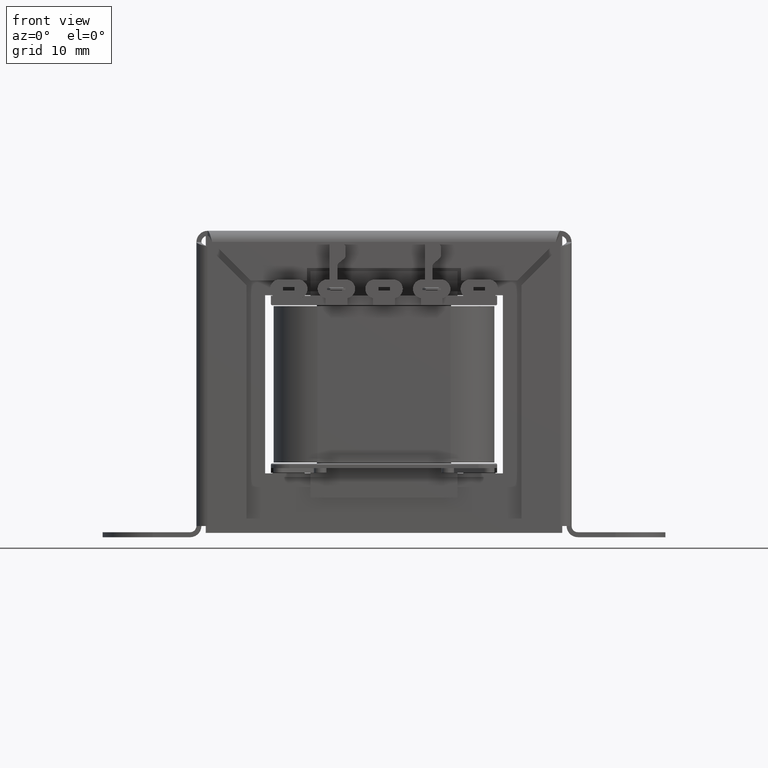
[diagram: clean part render]
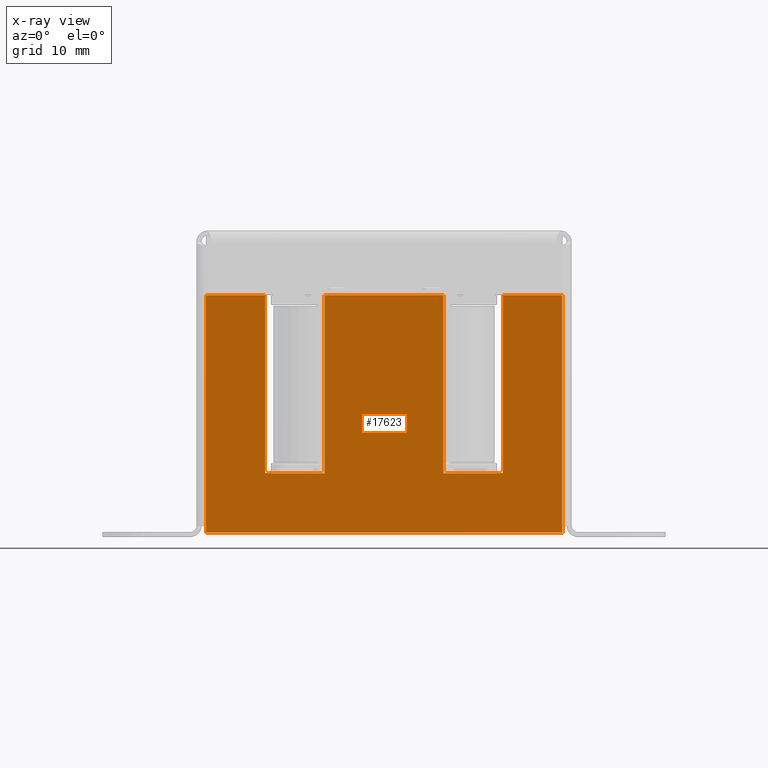
[diagram: x-ray — body ghosted, one internal face saturated and labeled with its STEP entity id]
A machine part, front view, then the same camera in x-ray: the body is ghosted and one INTERNAL B-rep face — a face not visible from any outside direction — is saturated and labeled: STEP entity #17623.
In plain terms, the highlighted planar face has unit normal (0, -1, 0).
Its self-contained STEP definition (entity closure, byte-faithful):
#12 = EDGE_CURVE ( 'NONE', #11291, #10592, #14091, .T. ) ;
#295 = DIRECTION ( 'NONE',  ( 2.434699615406045218E-16, -1.000000000000000000, 0.000000000000000000 ) ) ;
#308 = CARTESIAN_POINT ( 'NONE',  ( 28.50000000000000711, -19.00000000000000000, 0.4000000000000000222 ) ) ;
#621 = ORIENTED_EDGE ( 'NONE', *, *, #13158, .T. ) ;
#788 = VECTOR ( 'NONE', #12772, 1000.000000000000000 ) ;
#878 = CARTESIAN_POINT ( 'NONE',  ( 28.50000000000000000, 19.00000000000000000, 0.4000000000000000222 ) ) ;
#984 = CARTESIAN_POINT ( 'NONE',  ( -19.00000000000000711, 18.99999999999999289, 0.4000000000000000222 ) ) ;
#1393 = VERTEX_POINT ( 'NONE', #984 ) ;
#1705 = VECTOR ( 'NONE', #7414, 1000.000000000000000 ) ;
#1779 = ORIENTED_EDGE ( 'NONE', *, *, #9439, .T. ) ;
#1913 = VECTOR ( 'NONE', #2356, 1000.000000000000000 ) ;
#2356 = DIRECTION ( 'NONE',  ( 1.000000000000000000, 0.000000000000000000, 0.000000000000000000 ) ) ;
#2909 = CARTESIAN_POINT ( 'NONE',  ( -19.00000000000000000, -9.500000000000003553, 0.4000000000000000222 ) ) ;
#2958 = LINE ( 'NONE', #13086, #1705 ) ;
#3269 = EDGE_CURVE ( 'NONE', #9413, #3473, #9210, .T. ) ;
#3473 = VERTEX_POINT ( 'NONE', #5641 ) ;
#4057 = PLANE ( 'NONE',  #6857 ) ;
#4115 = EDGE_CURVE ( 'NONE', #5504, #16447, #15098, .T. ) ;
#4309 = LINE ( 'NONE', #11460, #16601 ) ;
#4403 = ORIENTED_EDGE ( 'NONE', *, *, #8785, .T. ) ;
#4447 = DIRECTION ( 'NONE',  ( 1.826024711554533420E-16, -1.000000000000000000, 0.000000000000000000 ) ) ;
#4848 = VECTOR ( 'NONE', #5845, 1000.000000000000000 ) ;
#4935 = LINE ( 'NONE', #7608, #10515 ) ;
#5134 = ORIENTED_EDGE ( 'NONE', *, *, #6537, .F. ) ;
#5156 = DIRECTION ( 'NONE',  ( 1.000000000000000000, 0.000000000000000000, 0.000000000000000000 ) ) ;
#5224 = VECTOR ( 'NONE', #16206, 1000.000000000000000 ) ;
#5228 = CARTESIAN_POINT ( 'NONE',  ( -28.49999999999999645, -19.00000000000001066, 0.4000000000000000222 ) ) ;
#5281 = CARTESIAN_POINT ( 'NONE',  ( 0.000000000000000000, -9.500000000000003553, 0.4000000000000000222 ) ) ;
#5332 = ORIENTED_EDGE ( 'NONE', *, *, #12037, .F. ) ;
#5504 = VERTEX_POINT ( 'NONE', #878 ) ;
#5573 = ORIENTED_EDGE ( 'NONE', *, *, #8507, .T. ) ;
#5641 = CARTESIAN_POINT ( 'NONE',  ( -9.500000000000000000, -9.500000000000003553, 0.4000000000000000222 ) ) ;
#5845 = DIRECTION ( 'NONE',  ( 3.043374519257556522E-16, -1.000000000000000000, 0.000000000000000000 ) ) ;
#6350 = ORIENTED_EDGE ( 'NONE', *, *, #12, .F. ) ;
#6513 = DIRECTION ( 'NONE',  ( 0.000000000000000000, -1.000000000000000000, 0.000000000000000000 ) ) ;
#6537 = EDGE_CURVE ( 'NONE', #10592, #7041, #8743, .T. ) ;
#6800 = CARTESIAN_POINT ( 'NONE',  ( 0.000000000000000000, 0.000000000000000000, 0.4000000000000000222 ) ) ;
#6857 = AXIS2_PLACEMENT_3D ( 'NONE', #6800, #12105, #5156 ) ;
#7041 = VERTEX_POINT ( 'NONE', #7700 ) ;
#7100 = VERTEX_POINT ( 'NONE', #5228 ) ;
#7164 = LINE ( 'NONE', #12747, #5224 ) ;
#7414 = DIRECTION ( 'NONE',  ( -1.000000000000000000, -1.217349807703022362E-16, 0.000000000000000000 ) ) ;
#7608 = CARTESIAN_POINT ( 'NONE',  ( -2.312964634635741872E-15, 18.99999999999999645, 0.4000000000000000222 ) ) ;
#7622 = VECTOR ( 'NONE', #13458, 1000.000000000000000 ) ;
#7700 = CARTESIAN_POINT ( 'NONE',  ( 19.00000000000000355, -9.500000000000005329, 0.4000000000000000222 ) ) ;
#8046 = CARTESIAN_POINT ( 'NONE',  ( 28.50000000000000355, 2.602085213965211430E-15, 0.4000000000000000222 ) ) ;
#8174 = EDGE_CURVE ( 'NONE', #12701, #7041, #10839, .T. ) ;
#8472 = VECTOR ( 'NONE', #4447, 1000.000000000000000 ) ;
#8507 = EDGE_CURVE ( 'NONE', #9952, #3473, #4309, .T. ) ;
#8617 = EDGE_CURVE ( 'NONE', #11291, #9952, #2958, .T. ) ;
#8621 = VERTEX_POINT ( 'NONE', #10272 ) ;
#8743 = LINE ( 'NONE', #14144, #788 ) ;
#8774 = CARTESIAN_POINT ( 'NONE',  ( -9.500000000000007105, 18.99999999999999645, 0.4000000000000000222 ) ) ;
#8785 = EDGE_CURVE ( 'NONE', #1393, #8621, #4935, .T. ) ;
#9034 = EDGE_LOOP ( 'NONE', ( #14997, #5573, #10080, #5332, #4403, #1779, #10337, #12340, #621, #13119, #5134, #6350 ) ) ;
#9210 = LINE ( 'NONE', #5281, #1913 ) ;
#9313 = VECTOR ( 'NONE', #13218, 1000.000000000000000 ) ;
#9321 = CARTESIAN_POINT ( 'NONE',  ( 19.00000000000000355, 19.00000000000000000, 0.4000000000000000222 ) ) ;
#9413 = VERTEX_POINT ( 'NONE', #2909 ) ;
#9439 = EDGE_CURVE ( 'NONE', #8621, #7100, #16986, .T. ) ;
#9842 = LINE ( 'NONE', #15320, #17493 ) ;
#9952 = VERTEX_POINT ( 'NONE', #8774 ) ;
#10080 = ORIENTED_EDGE ( 'NONE', *, *, #3269, .F. ) ;
#10272 = CARTESIAN_POINT ( 'NONE',  ( -28.50000000000000355, 18.99999999999999289, 0.4000000000000000222 ) ) ;
#10337 = ORIENTED_EDGE ( 'NONE', *, *, #13591, .F. ) ;
#10515 = VECTOR ( 'NONE', #14655, 1000.000000000000000 ) ;
#10592 = VERTEX_POINT ( 'NONE', #15293 ) ;
#10754 = FACE_OUTER_BOUND ( 'NONE', #9034, .T. ) ;
#10839 = LINE ( 'NONE', #12187, #17462 ) ;
#11138 = DIRECTION ( 'NONE',  ( 2.434699615406045218E-16, -1.000000000000000000, 0.000000000000000000 ) ) ;
#11291 = VERTEX_POINT ( 'NONE', #13240 ) ;
#11460 = CARTESIAN_POINT ( 'NONE',  ( -9.500000000000001776, -2.312964634635743450E-15, 0.4000000000000000222 ) ) ;
#11675 = LINE ( 'NONE', #16057, #9313 ) ;
#12037 = EDGE_CURVE ( 'NONE', #1393, #9413, #9842, .T. ) ;
#12105 = DIRECTION ( 'NONE',  ( -0.000000000000000000, 0.000000000000000000, 1.000000000000000000 ) ) ;
#12187 = CARTESIAN_POINT ( 'NONE',  ( 19.00000000000000355, 0.000000000000000000, 0.4000000000000000222 ) ) ;
#12340 = ORIENTED_EDGE ( 'NONE', *, *, #4115, .F. ) ;
#12701 = VERTEX_POINT ( 'NONE', #9321 ) ;
#12747 = CARTESIAN_POINT ( 'NONE',  ( -2.312964634635741872E-15, 18.99999999999999645, 0.4000000000000000222 ) ) ;
#12772 = DIRECTION ( 'NONE',  ( 1.000000000000000000, -1.826024711554533420E-16, 0.000000000000000000 ) ) ;
#13086 = CARTESIAN_POINT ( 'NONE',  ( -2.312964634635741872E-15, 18.99999999999999645, 0.4000000000000000222 ) ) ;
#13119 = ORIENTED_EDGE ( 'NONE', *, *, #8174, .T. ) ;
#13158 = EDGE_CURVE ( 'NONE', #5504, #12701, #7164, .T. ) ;
#13218 = DIRECTION ( 'NONE',  ( -1.000000000000000000, -1.826024711554533667E-16, 0.000000000000000000 ) ) ;
#13240 = CARTESIAN_POINT ( 'NONE',  ( 9.499999999999992895, 18.99999999999999645, 0.4000000000000000222 ) ) ;
#13458 = DIRECTION ( 'NONE',  ( 9.130123557772670799E-17, -1.000000000000000000, 0.000000000000000000 ) ) ;
#13591 = EDGE_CURVE ( 'NONE', #16447, #7100, #11675, .T. ) ;
#13974 = CARTESIAN_POINT ( 'NONE',  ( -28.50000000000000000, -5.204170427930420494E-15, 0.4000000000000000222 ) ) ;
#14091 = LINE ( 'NONE', #15270, #4848 ) ;
#14144 = CARTESIAN_POINT ( 'NONE',  ( -1.734723475976807094E-15, -9.500000000000001776, 0.4000000000000000222 ) ) ;
#14655 = DIRECTION ( 'NONE',  ( -1.000000000000000000, -1.217349807703022362E-16, 0.000000000000000000 ) ) ;
#14997 = ORIENTED_EDGE ( 'NONE', *, *, #8617, .T. ) ;
#15098 = LINE ( 'NONE', #8046, #7622 ) ;
#15270 = CARTESIAN_POINT ( 'NONE',  ( 9.499999999999998224, 2.891205793294678228E-15, 0.4000000000000000222 ) ) ;
#15293 = CARTESIAN_POINT ( 'NONE',  ( 9.500000000000001776, -9.500000000000003553, 0.4000000000000000222 ) ) ;
#15320 = CARTESIAN_POINT ( 'NONE',  ( -19.00000000000000355, -4.625929269271486900E-15, 0.4000000000000000222 ) ) ;
#16057 = CARTESIAN_POINT ( 'NONE',  ( 3.469446951953614978E-15, -19.00000000000000711, 0.4000000000000000222 ) ) ;
#16206 = DIRECTION ( 'NONE',  ( -1.000000000000000000, -1.217349807703022362E-16, 0.000000000000000000 ) ) ;
#16447 = VERTEX_POINT ( 'NONE', #308 ) ;
#16601 = VECTOR ( 'NONE', #295, 1000.000000000000000 ) ;
#16986 = LINE ( 'NONE', #13974, #8472 ) ;
#17462 = VECTOR ( 'NONE', #6513, 1000.000000000000000 ) ;
#17493 = VECTOR ( 'NONE', #11138, 1000.000000000000000 ) ;
#17623 = ADVANCED_FACE ( 'NONE', ( #10754 ), #4057, .T. ) ;